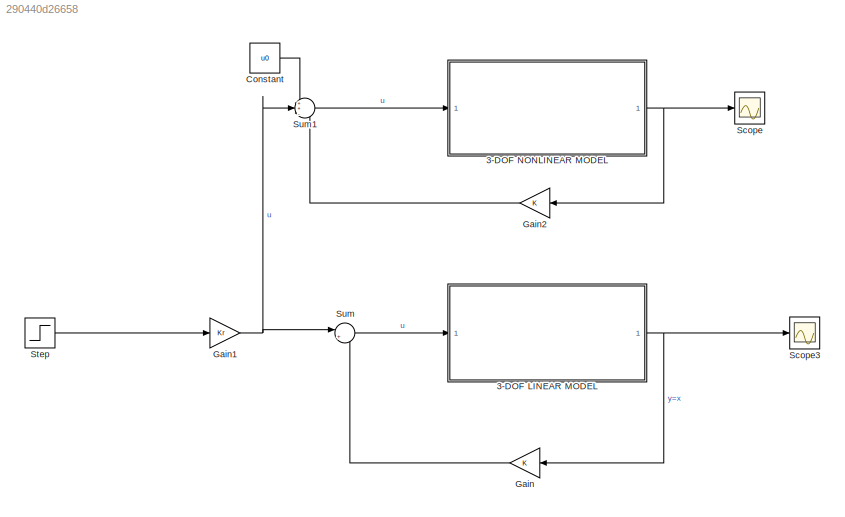
MODEL slx_290440d26658
KIND model
CONFIG AbsTol = auto
CONFIG EnableMultiTasking = on
CONFIG FixedStep = auto
CONFIG MaxStep = auto
CONFIG MinStep = auto
CONFIG RelTol = 1e-3
CONFIG SampleTimeConstraint = Unconstrained
CONFIG SolverName = ode45
CONFIG StartTime = 0.0
CONFIG StopTime = 10
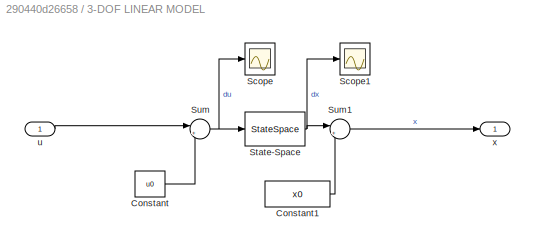
BLOCK [SubSystem] 3-DOF LINEAR MODEL
  Ports = [1, 1]
  RequestExecContextInheritance = off
BLOCK [Constant] 3-DOF LINEAR MODEL/Constant
  Value = u0
BLOCK [Constant] 3-DOF LINEAR MODEL/Constant1
  Value = x0
BLOCK [Scope] 3-DOF LINEAR MODEL/Scope
  Floating = off
  NumInputPorts = 1
  Ports = [1]
  ScopeSpecificationString = Simulink.scopes.TimeScopeBlockCfg('CurrentConfiguration', extmgr.ConfigurationSet(extmgr.Configuration('Core','General UI',true),extmgr.Configuration('Core','Source UI',true),extmgr.Configuration('Sources','WiredSimulink',true,'DataLoggingVariableName','ScopeData1'),extmgr.Configuration('Visuals','Time Domain',true,'SerializedDisplays',{struct('MinYLimReal','-9.14387','MaxYLimReal','-7.89387','YLa...<+1372ch>
BLOCK [Scope] 3-DOF LINEAR MODEL/Scope1
  Floating = off
  NumInputPorts = 1
  Ports = [1]
  ScopeSpecificationString = Simulink.scopes.TimeScopeBlockCfg('CurrentConfiguration', extmgr.ConfigurationSet(extmgr.Configuration('Core','General UI',true),extmgr.Configuration('Core','Source UI',true),extmgr.Configuration('Sources','WiredSimulink',true,'DataLoggingVariableName','ScopeData2'),extmgr.Configuration('Visuals','Time Domain',true),extmgr.Configuration('Tools','Plot Navigation',true),extmgr.Configuration('Tools',...<+40ch>
BLOCK [StateSpace] 3-DOF LINEAR MODEL/State-Space
  A = Ad
  B = Bd
  C = eye(size(Ad))
  ContinuousStateAttributes = {'eps','ro','lam','epsdot','rodot','lamdot'}
  D = zeros(size(Bd))
  InitialCondition = x0
  Ports = [1, 1]
BLOCK [Sum] 3-DOF LINEAR MODEL/Sum
  Inputs = |++
  Ports = [2, 1]
BLOCK [Sum] 3-DOF LINEAR MODEL/Sum1
  Inputs = |++
  Ports = [2, 1]
BLOCK [Inport] 3-DOF LINEAR MODEL/u
BLOCK [Outport] 3-DOF LINEAR MODEL/x
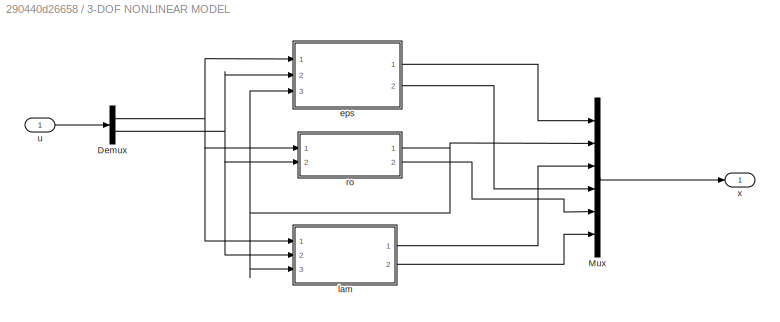
BLOCK [SubSystem] 3-DOF NONLINEAR MODEL
  Ports = [1, 1]
  RequestExecContextInheritance = off
BLOCK [Demux] 3-DOF NONLINEAR MODEL/Demux
  Outputs = 2
  Ports = [1, 2]
BLOCK [Mux] 3-DOF NONLINEAR MODEL/Mux
  DisplayOption = bar
  Inputs = 6
  Ports = [6, 1]
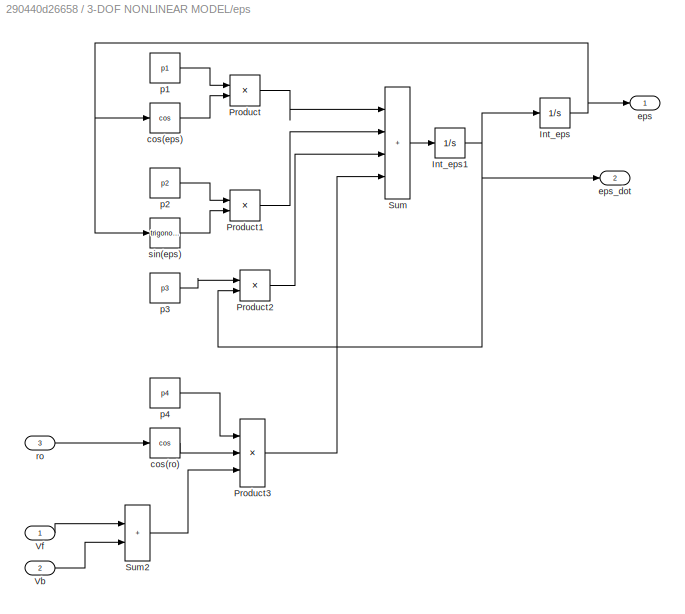
BLOCK [SubSystem] 3-DOF NONLINEAR MODEL/eps
  Ports = [3, 2]
  RequestExecContextInheritance = off
BLOCK [Integrator] 3-DOF NONLINEAR MODEL/eps/Int_eps
  ContinuousStateAttributes = 'eps'
  InitialCondition = eps0
  Ports = [1, 1]
BLOCK [Integrator] 3-DOF NONLINEAR MODEL/eps/Int_eps1
  ContinuousStateAttributes = 'epsdot'
  InitialCondition = eps0dot
  Ports = [1, 1]
BLOCK [Product] 3-DOF NONLINEAR MODEL/eps/Product
  Ports = [2, 1]
  RndMeth = Zero
BLOCK [Product] 3-DOF NONLINEAR MODEL/eps/Product1
  Ports = [2, 1]
  RndMeth = Zero
BLOCK [Product] 3-DOF NONLINEAR MODEL/eps/Product2
  Ports = [2, 1]
  RndMeth = Zero
BLOCK [Product] 3-DOF NONLINEAR MODEL/eps/Product3
  Inputs = 3
  Ports = [3, 1]
  RndMeth = Zero
BLOCK [Sum] 3-DOF NONLINEAR MODEL/eps/Sum
  IconShape = rectangular
  Inputs = |++++
  Ports = [4, 1]
BLOCK [Sum] 3-DOF NONLINEAR MODEL/eps/Sum2
  IconShape = rectangular
  Inputs = |++
  Ports = [2, 1]
BLOCK [Inport] 3-DOF NONLINEAR MODEL/eps/Vb
  Port = 2
BLOCK [Inport] 3-DOF NONLINEAR MODEL/eps/Vf
BLOCK [Trigonometry] 3-DOF NONLINEAR MODEL/eps/cos(eps)
  Operator = cos
  Ports = [1, 1]
BLOCK [Trigonometry] 3-DOF NONLINEAR MODEL/eps/cos(ro)
  Operator = cos
  Ports = [1, 1]
BLOCK [Outport] 3-DOF NONLINEAR MODEL/eps/eps
BLOCK [Outport] 3-DOF NONLINEAR MODEL/eps/eps_dot
  Port = 2
BLOCK [Constant] 3-DOF NONLINEAR MODEL/eps/p1
  Value = p1
BLOCK [Constant] 3-DOF NONLINEAR MODEL/eps/p2
  Value = p2
BLOCK [Constant] 3-DOF NONLINEAR MODEL/eps/p3
  Value = p3
BLOCK [Constant] 3-DOF NONLINEAR MODEL/eps/p4
  Value = p4
BLOCK [Inport] 3-DOF NONLINEAR MODEL/eps/ro
  Port = 3
BLOCK [Trigonometry] 3-DOF NONLINEAR MODEL/eps/sin(eps)
  Ports = [1, 1]
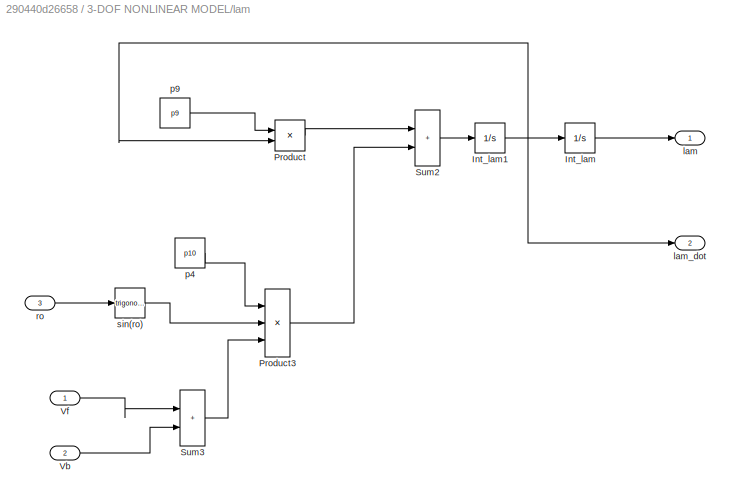
BLOCK [SubSystem] 3-DOF NONLINEAR MODEL/lam
  Ports = [3, 2]
  RequestExecContextInheritance = off
BLOCK [Integrator] 3-DOF NONLINEAR MODEL/lam/Int_lam
  ContinuousStateAttributes = 'lam'
  InitialCondition = lam0
  Ports = [1, 1]
BLOCK [Integrator] 3-DOF NONLINEAR MODEL/lam/Int_lam1
  ContinuousStateAttributes = 'lamdot'
  InitialCondition = lam0dot
  Ports = [1, 1]
BLOCK [Product] 3-DOF NONLINEAR MODEL/lam/Product
  Ports = [2, 1]
  RndMeth = Zero
BLOCK [Product] 3-DOF NONLINEAR MODEL/lam/Product3
  Inputs = 3
  Ports = [3, 1]
  RndMeth = Zero
BLOCK [Sum] 3-DOF NONLINEAR MODEL/lam/Sum2
  IconShape = rectangular
  Inputs = |++
  Ports = [2, 1]
BLOCK [Sum] 3-DOF NONLINEAR MODEL/lam/Sum3
  IconShape = rectangular
  Inputs = |++
  Ports = [2, 1]
BLOCK [Inport] 3-DOF NONLINEAR MODEL/lam/Vb
  Port = 2
BLOCK [Inport] 3-DOF NONLINEAR MODEL/lam/Vf
BLOCK [Outport] 3-DOF NONLINEAR MODEL/lam/lam
BLOCK [Outport] 3-DOF NONLINEAR MODEL/lam/lam_dot
  Port = 2
BLOCK [Constant] 3-DOF NONLINEAR MODEL/lam/p4
  Value = p10
BLOCK [Constant] 3-DOF NONLINEAR MODEL/lam/p9
  Value = p9
BLOCK [Inport] 3-DOF NONLINEAR MODEL/lam/ro
  Port = 3
BLOCK [Trigonometry] 3-DOF NONLINEAR MODEL/lam/sin(ro)
  Ports = [1, 1]
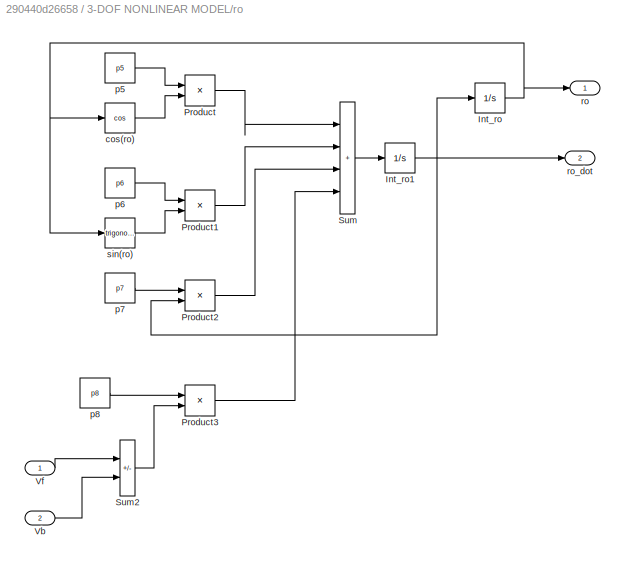
BLOCK [SubSystem] 3-DOF NONLINEAR MODEL/ro
  Ports = [2, 2]
  RequestExecContextInheritance = off
BLOCK [Integrator] 3-DOF NONLINEAR MODEL/ro/Int_ro
  ContinuousStateAttributes = 'ro'
  InitialCondition = ro0
  Ports = [1, 1]
BLOCK [Integrator] 3-DOF NONLINEAR MODEL/ro/Int_ro1
  ContinuousStateAttributes = 'rodot'
  InitialCondition = ro0dot
  Ports = [1, 1]
BLOCK [Product] 3-DOF NONLINEAR MODEL/ro/Product
  Ports = [2, 1]
  RndMeth = Zero
BLOCK [Product] 3-DOF NONLINEAR MODEL/ro/Product1
  Ports = [2, 1]
  RndMeth = Zero
BLOCK [Product] 3-DOF NONLINEAR MODEL/ro/Product2
  Ports = [2, 1]
  RndMeth = Zero
BLOCK [Product] 3-DOF NONLINEAR MODEL/ro/Product3
  Ports = [2, 1]
  RndMeth = Zero
BLOCK [Sum] 3-DOF NONLINEAR MODEL/ro/Sum
  IconShape = rectangular
  Inputs = |++++
  Ports = [4, 1]
BLOCK [Sum] 3-DOF NONLINEAR MODEL/ro/Sum2
  IconShape = rectangular
  Inputs = |+-
  Ports = [2, 1]
BLOCK [Inport] 3-DOF NONLINEAR MODEL/ro/Vb
  Port = 2
BLOCK [Inport] 3-DOF NONLINEAR MODEL/ro/Vf
BLOCK [Trigonometry] 3-DOF NONLINEAR MODEL/ro/cos(ro)
  Operator = cos
  Ports = [1, 1]
BLOCK [Constant] 3-DOF NONLINEAR MODEL/ro/p5
  Value = p5
BLOCK [Constant] 3-DOF NONLINEAR MODEL/ro/p6
  Value = p6
BLOCK [Constant] 3-DOF NONLINEAR MODEL/ro/p7
  Value = p7
BLOCK [Constant] 3-DOF NONLINEAR MODEL/ro/p8
  Value = p8
BLOCK [Outport] 3-DOF NONLINEAR MODEL/ro/ro
BLOCK [Outport] 3-DOF NONLINEAR MODEL/ro/ro_dot
  Port = 2
BLOCK [Trigonometry] 3-DOF NONLINEAR MODEL/ro/sin(ro)
  Ports = [1, 1]
BLOCK [Inport] 3-DOF NONLINEAR MODEL/u
BLOCK [Outport] 3-DOF NONLINEAR MODEL/x
BLOCK [Constant] Constant
  Value = u0
BLOCK [Gain] Gain
  Gain = K
  Multiplication = Matrix(K*u)
  NameLocation = top
BLOCK [Gain] Gain1
  Gain = Kr
  Multiplication = Matrix(K*u)
BLOCK [Gain] Gain2
  Gain = K
  Multiplication = Matrix(K*u)
  NameLocation = top
BLOCK [Scope] Scope
  Floating = off
  NumInputPorts = 1
  Ports = [1]
  ScopeSpecificationString = Simulink.scopes.TimeScopeBlockCfg('CurrentConfiguration', extmgr.ConfigurationSet(extmgr.Configuration('Core','General UI',true),extmgr.Configuration('Core','Source UI',true),extmgr.Configuration('Sources','WiredSimulink',true),extmgr.Configuration('Visuals','Time Domain',true,'SerializedDisplays',{struct('MinYLimReal','-2.46708','MaxYLimReal','2.05744','YLabelReal','','MinYLimMag','0.00000','MaxY...<+1473ch>
BLOCK [Scope] Scope3
  Floating = off
  NumInputPorts = 1
  Ports = [1]
  ScopeSpecificationString = Simulink.scopes.TimeScopeBlockCfg('CurrentConfiguration', extmgr.ConfigurationSet(extmgr.Configuration('Core','General UI',true),extmgr.Configuration('Core','Source UI',true),extmgr.Configuration('Sources','WiredSimulink',true,'DataLoggingVariableName','ScopeData3'),extmgr.Configuration('Visuals','Time Domain',true,'SerializedDisplays',{struct('MinYLimReal','-1.92773','MaxYLimReal','1.34202','YLab...<+1404ch>
BLOCK [Step] Step
  After = R_10
  SampleTime = 0
  Time = 0
BLOCK [Sum] Sum
  Inputs = |+-
  Ports = [2, 1]
BLOCK [Sum] Sum1
  Inputs = ++|-
  Ports = [3, 1]
LINE 3-DOF LINEAR MODEL/Constant1:1 -> 3-DOF LINEAR MODEL/Sum1:2
LINE 3-DOF LINEAR MODEL/Constant:1 -> 3-DOF LINEAR MODEL/Sum:2
NET 3-DOF LINEAR MODEL/State-Space:1 -> 3-DOF LINEAR MODEL/Scope1:1, 3-DOF LINEAR MODEL/Sum1:1
LINE 3-DOF LINEAR MODEL/Sum1:1 -> 3-DOF LINEAR MODEL/x:1
NET 3-DOF LINEAR MODEL/Sum:1 -> 3-DOF LINEAR MODEL/Scope:1, 3-DOF LINEAR MODEL/State-Space:1
LINE 3-DOF LINEAR MODEL/u:1 -> 3-DOF LINEAR MODEL/Sum:1
NET 3-DOF LINEAR MODEL:1 -> Gain:1, Scope3:1
NET 3-DOF NONLINEAR MODEL/Demux:1 -> 3-DOF NONLINEAR MODEL/eps:1, 3-DOF NONLINEAR MODEL/lam:1, 3-DOF NONLINEAR MODEL/ro:1
NET 3-DOF NONLINEAR MODEL/Demux:2 -> 3-DOF NONLINEAR MODEL/eps:2, 3-DOF NONLINEAR MODEL/lam:2, 3-DOF NONLINEAR MODEL/ro:2
LINE 3-DOF NONLINEAR MODEL/Mux:1 -> 3-DOF NONLINEAR MODEL/x:1
NET 3-DOF NONLINEAR MODEL/eps/Int_eps1:1 -> 3-DOF NONLINEAR MODEL/eps/Int_eps:1, 3-DOF NONLINEAR MODEL/eps/Product2:2, 3-DOF NONLINEAR MODEL/eps/eps_dot:1
NET 3-DOF NONLINEAR MODEL/eps/Int_eps:1 -> 3-DOF NONLINEAR MODEL/eps/cos(eps):1, 3-DOF NONLINEAR MODEL/eps/eps:1, 3-DOF NONLINEAR MODEL/eps/sin(eps):1
LINE 3-DOF NONLINEAR MODEL/eps/Product1:1 -> 3-DOF NONLINEAR MODEL/eps/Sum:2
LINE 3-DOF NONLINEAR MODEL/eps/Product2:1 -> 3-DOF NONLINEAR MODEL/eps/Sum:3
LINE 3-DOF NONLINEAR MODEL/eps/Product3:1 -> 3-DOF NONLINEAR MODEL/eps/Sum:4
LINE 3-DOF NONLINEAR MODEL/eps/Product:1 -> 3-DOF NONLINEAR MODEL/eps/Sum:1
LINE 3-DOF NONLINEAR MODEL/eps/Sum2:1 -> 3-DOF NONLINEAR MODEL/eps/Product3:3
LINE 3-DOF NONLINEAR MODEL/eps/Sum:1 -> 3-DOF NONLINEAR MODEL/eps/Int_eps1:1
LINE 3-DOF NONLINEAR MODEL/eps/Vb:1 -> 3-DOF NONLINEAR MODEL/eps/Sum2:2
LINE 3-DOF NONLINEAR MODEL/eps/Vf:1 -> 3-DOF NONLINEAR MODEL/eps/Sum2:1
LINE 3-DOF NONLINEAR MODEL/eps/cos(eps):1 -> 3-DOF NONLINEAR MODEL/eps/Product:2
LINE 3-DOF NONLINEAR MODEL/eps/cos(ro):1 -> 3-DOF NONLINEAR MODEL/eps/Product3:2
LINE 3-DOF NONLINEAR MODEL/eps/p1:1 -> 3-DOF NONLINEAR MODEL/eps/Product:1
LINE 3-DOF NONLINEAR MODEL/eps/p2:1 -> 3-DOF NONLINEAR MODEL/eps/Product1:1
LINE 3-DOF NONLINEAR MODEL/eps/p3:1 -> 3-DOF NONLINEAR MODEL/eps/Product2:1
LINE 3-DOF NONLINEAR MODEL/eps/p4:1 -> 3-DOF NONLINEAR MODEL/eps/Product3:1
LINE 3-DOF NONLINEAR MODEL/eps/ro:1 -> 3-DOF NONLINEAR MODEL/eps/cos(ro):1
LINE 3-DOF NONLINEAR MODEL/eps/sin(eps):1 -> 3-DOF NONLINEAR MODEL/eps/Product1:2
LINE 3-DOF NONLINEAR MODEL/eps:1 -> 3-DOF NONLINEAR MODEL/Mux:1
LINE 3-DOF NONLINEAR MODEL/eps:2 -> 3-DOF NONLINEAR MODEL/Mux:4
NET 3-DOF NONLINEAR MODEL/lam/Int_lam1:1 -> 3-DOF NONLINEAR MODEL/lam/Int_lam:1, 3-DOF NONLINEAR MODEL/lam/Product:2, 3-DOF NONLINEAR MODEL/lam/lam_dot:1
LINE 3-DOF NONLINEAR MODEL/lam/Int_lam:1 -> 3-DOF NONLINEAR MODEL/lam/lam:1
LINE 3-DOF NONLINEAR MODEL/lam/Product3:1 -> 3-DOF NONLINEAR MODEL/lam/Sum2:2
LINE 3-DOF NONLINEAR MODEL/lam/Product:1 -> 3-DOF NONLINEAR MODEL/lam/Sum2:1
LINE 3-DOF NONLINEAR MODEL/lam/Sum2:1 -> 3-DOF NONLINEAR MODEL/lam/Int_lam1:1
LINE 3-DOF NONLINEAR MODEL/lam/Sum3:1 -> 3-DOF NONLINEAR MODEL/lam/Product3:3
LINE 3-DOF NONLINEAR MODEL/lam/Vb:1 -> 3-DOF NONLINEAR MODEL/lam/Sum3:2
LINE 3-DOF NONLINEAR MODEL/lam/Vf:1 -> 3-DOF NONLINEAR MODEL/lam/Sum3:1
LINE 3-DOF NONLINEAR MODEL/lam/p4:1 -> 3-DOF NONLINEAR MODEL/lam/Product3:1
LINE 3-DOF NONLINEAR MODEL/lam/p9:1 -> 3-DOF NONLINEAR MODEL/lam/Product:1
LINE 3-DOF NONLINEAR MODEL/lam/ro:1 -> 3-DOF NONLINEAR MODEL/lam/sin(ro):1
LINE 3-DOF NONLINEAR MODEL/lam/sin(ro):1 -> 3-DOF NONLINEAR MODEL/lam/Product3:2
LINE 3-DOF NONLINEAR MODEL/lam:1 -> 3-DOF NONLINEAR MODEL/Mux:3
LINE 3-DOF NONLINEAR MODEL/lam:2 -> 3-DOF NONLINEAR MODEL/Mux:6
NET 3-DOF NONLINEAR MODEL/ro/Int_ro1:1 -> 3-DOF NONLINEAR MODEL/ro/Int_ro:1, 3-DOF NONLINEAR MODEL/ro/Product2:2, 3-DOF NONLINEAR MODEL/ro/ro_dot:1
NET 3-DOF NONLINEAR MODEL/ro/Int_ro:1 -> 3-DOF NONLINEAR MODEL/ro/cos(ro):1, 3-DOF NONLINEAR MODEL/ro/ro:1, 3-DOF NONLINEAR MODEL/ro/sin(ro):1
LINE 3-DOF NONLINEAR MODEL/ro/Product1:1 -> 3-DOF NONLINEAR MODEL/ro/Sum:2
LINE 3-DOF NONLINEAR MODEL/ro/Product2:1 -> 3-DOF NONLINEAR MODEL/ro/Sum:3
LINE 3-DOF NONLINEAR MODEL/ro/Product3:1 -> 3-DOF NONLINEAR MODEL/ro/Sum:4
LINE 3-DOF NONLINEAR MODEL/ro/Product:1 -> 3-DOF NONLINEAR MODEL/ro/Sum:1
LINE 3-DOF NONLINEAR MODEL/ro/Sum2:1 -> 3-DOF NONLINEAR MODEL/ro/Product3:2
LINE 3-DOF NONLINEAR MODEL/ro/Sum:1 -> 3-DOF NONLINEAR MODEL/ro/Int_ro1:1
LINE 3-DOF NONLINEAR MODEL/ro/Vb:1 -> 3-DOF NONLINEAR MODEL/ro/Sum2:2
LINE 3-DOF NONLINEAR MODEL/ro/Vf:1 -> 3-DOF NONLINEAR MODEL/ro/Sum2:1
LINE 3-DOF NONLINEAR MODEL/ro/cos(ro):1 -> 3-DOF NONLINEAR MODEL/ro/Product:2
LINE 3-DOF NONLINEAR MODEL/ro/p5:1 -> 3-DOF NONLINEAR MODEL/ro/Product:1
LINE 3-DOF NONLINEAR MODEL/ro/p6:1 -> 3-DOF NONLINEAR MODEL/ro/Product1:1
LINE 3-DOF NONLINEAR MODEL/ro/p7:1 -> 3-DOF NONLINEAR MODEL/ro/Product2:1
LINE 3-DOF NONLINEAR MODEL/ro/p8:1 -> 3-DOF NONLINEAR MODEL/ro/Product3:1
LINE 3-DOF NONLINEAR MODEL/ro/sin(ro):1 -> 3-DOF NONLINEAR MODEL/ro/Product1:2
NET 3-DOF NONLINEAR MODEL/ro:1 -> 3-DOF NONLINEAR MODEL/Mux:2, 3-DOF NONLINEAR MODEL/eps:3, 3-DOF NONLINEAR MODEL/lam:3
LINE 3-DOF NONLINEAR MODEL/ro:2 -> 3-DOF NONLINEAR MODEL/Mux:5
LINE 3-DOF NONLINEAR MODEL/u:1 -> 3-DOF NONLINEAR MODEL/Demux:1
NET 3-DOF NONLINEAR MODEL:1 -> Gain2:1, Scope:1
LINE Constant:1 -> Sum1:1
NET Gain1:1 -> Sum1:2, Sum:1
LINE Gain2:1 -> Sum1:3
LINE Gain:1 -> Sum:2
LINE Step:1 -> Gain1:1
LINE Sum1:1 -> 3-DOF NONLINEAR MODEL:1
LINE Sum:1 -> 3-DOF LINEAR MODEL:1
note: NET lines group one-source signal fan-out (src -> all destinations, sorted); 1:1 wires keep LINE
